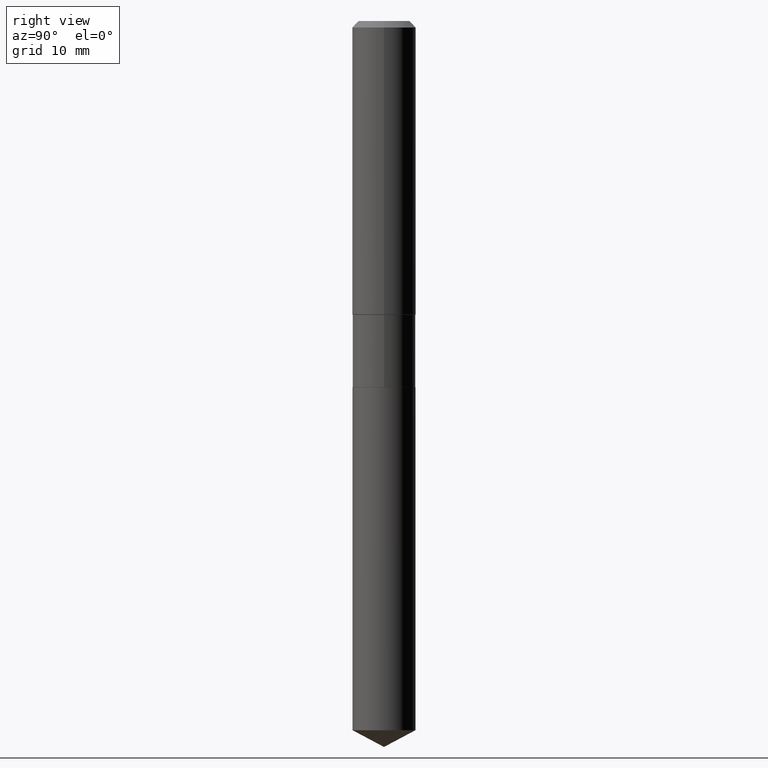
[diagram: clean part render]
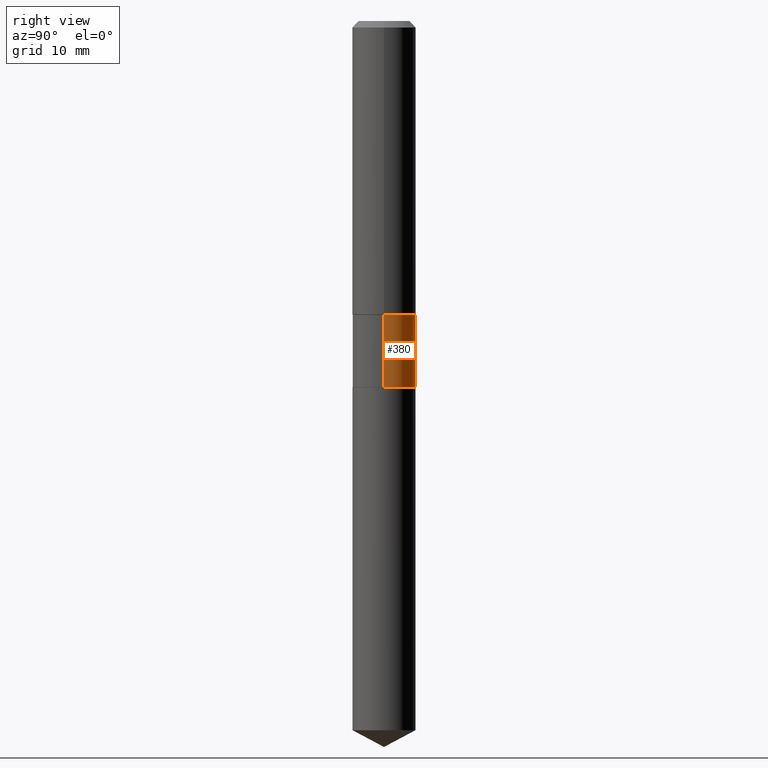
[diagram: same view with one face highlighted and labeled with its STEP entity id]
A machine part, right view. The second image highlights one B-rep face of the part: STEP entity #380.
In plain terms, the highlighted cylindrical surface (edge-blend (fillet) strip) has radius 3.9497 mm, axis along (-0, 0, 1).
Its self-contained STEP definition (entity closure, byte-faithful):
#1 = CARTESIAN_POINT ( 'NONE',  ( -0.1554999999999999438, 1.104893954106955390E-15, -7.648944065346376022E-30 ) ) ;
#8 = DIRECTION ( 'NONE',  ( -2.445468806185136597E-29, 3.491481338843145583E-15, 1.000000000000000000 ) ) ;
#28 = CIRCLE ( 'NONE', #403, 0.1554999999999999438 ) ;
#68 = DIRECTION ( 'NONE',  ( -2.445468806185136877E-29, 3.491481338843145188E-15, 1.000000000000000000 ) ) ;
#74 = VERTEX_POINT ( 'NONE', #214 ) ;
#77 = VERTEX_POINT ( 'NONE', #216 ) ;
#85 = ORIENTED_EDGE ( 'NONE', *, *, #350, .F. ) ;
#113 = FACE_OUTER_BOUND ( 'NONE', #238, .T. ) ;
#125 = DIRECTION ( 'NONE',  ( -2.445468806185136597E-29, 3.491481338843145583E-15, 1.000000000000000000 ) ) ;
#143 = DIRECTION ( 'NONE',  ( 1.000000000000000000, -6.982962677686266711E-15, 0.000000000000000000 ) ) ;
#159 = CYLINDRICAL_SURFACE ( 'NONE', #307, 0.1554999999999999438 ) ;
#163 = CARTESIAN_POINT ( 'NONE',  ( 0.1554999999999999993, -7.393560883134242215E-15, -1.806600000000000428 ) ) ;
#189 = CARTESIAN_POINT ( 'NONE',  ( 4.417983945254068051E-29, -6.307710186754027552E-15, -1.806600000000000428 ) ) ;
#202 = CARTESIAN_POINT ( 'NONE',  ( 3.544462487684736704E-29, -5.060553052519254127E-15, -1.449399999999999800 ) ) ;
#203 = VECTOR ( 'NONE', #379, 39.37007874015748143 ) ;
#214 = CARTESIAN_POINT ( 'NONE',  ( -0.1554999999999999438, -4.579237665529685647E-15, -1.449399999999999800 ) ) ;
#216 = CARTESIAN_POINT ( 'NONE',  ( 0.1554999999999999438, -6.146403748899468790E-15, -1.449399999999999800 ) ) ;
#227 = ORIENTED_EDGE ( 'NONE', *, *, #320, .F. ) ;
#228 = EDGE_CURVE ( 'NONE', #422, #74, #366, .T. ) ;
#237 = CARTESIAN_POINT ( 'NONE',  ( -0.1554999999999999993, -4.579237665529685647E-15, -1.806600000000000428 ) ) ;
#238 = EDGE_LOOP ( 'NONE', ( #274, #319, #227, #85 ) ) ;
#251 = EDGE_CURVE ( 'NONE', #341, #422, #410, .T. ) ;
#274 = ORIENTED_EDGE ( 'NONE', *, *, #251, .T. ) ;
#275 = LINE ( 'NONE', #335, #203 ) ;
#297 = DIRECTION ( 'NONE',  ( -2.445468806185136597E-29, 3.491481338843145583E-15, 1.000000000000000000 ) ) ;
#307 = AXIS2_PLACEMENT_3D ( 'NONE', #308, #125, #384 ) ;
#308 = CARTESIAN_POINT ( 'NONE',  ( 0.000000000000000000, 0.000000000000000000, 0.000000000000000000 ) ) ;
#319 = ORIENTED_EDGE ( 'NONE', *, *, #228, .T. ) ;
#320 = EDGE_CURVE ( 'NONE', #77, #74, #28, .T. ) ;
#335 = CARTESIAN_POINT ( 'NONE',  ( 0.1554999999999999438, -1.085850696380214268E-15, 7.582454886362678420E-30 ) ) ;
#341 = VERTEX_POINT ( 'NONE', #163 ) ;
#346 = DIRECTION ( 'NONE',  ( 1.000000000000000000, -6.982962677686269077E-15, 0.000000000000000000 ) ) ;
#350 = EDGE_CURVE ( 'NONE', #341, #77, #275, .T. ) ;
#366 = LINE ( 'NONE', #1, #430 ) ;
#379 = DIRECTION ( 'NONE',  ( -2.445468806185136877E-29, 3.491481338843145188E-15, 1.000000000000000000 ) ) ;
#380 = ADVANCED_FACE ( 'NONE', ( #113 ), #159, .T. ) ;
#384 = DIRECTION ( 'NONE',  ( 1.000000000000000000, -6.982962677686268288E-15, 4.876176775795936353E-29 ) ) ;
#403 = AXIS2_PLACEMENT_3D ( 'NONE', #202, #8, #346 ) ;
#410 = CIRCLE ( 'NONE', #477, 0.1554999999999999993 ) ;
#422 = VERTEX_POINT ( 'NONE', #237 ) ;
#430 = VECTOR ( 'NONE', #68, 39.37007874015748143 ) ;
#477 = AXIS2_PLACEMENT_3D ( 'NONE', #189, #297, #143 ) ;